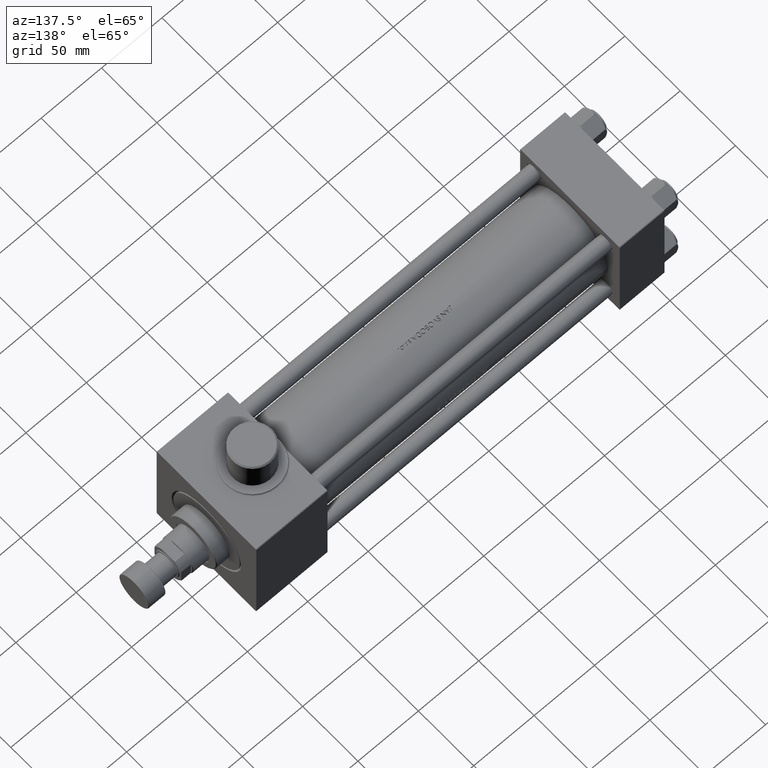
[diagram: clean part render]
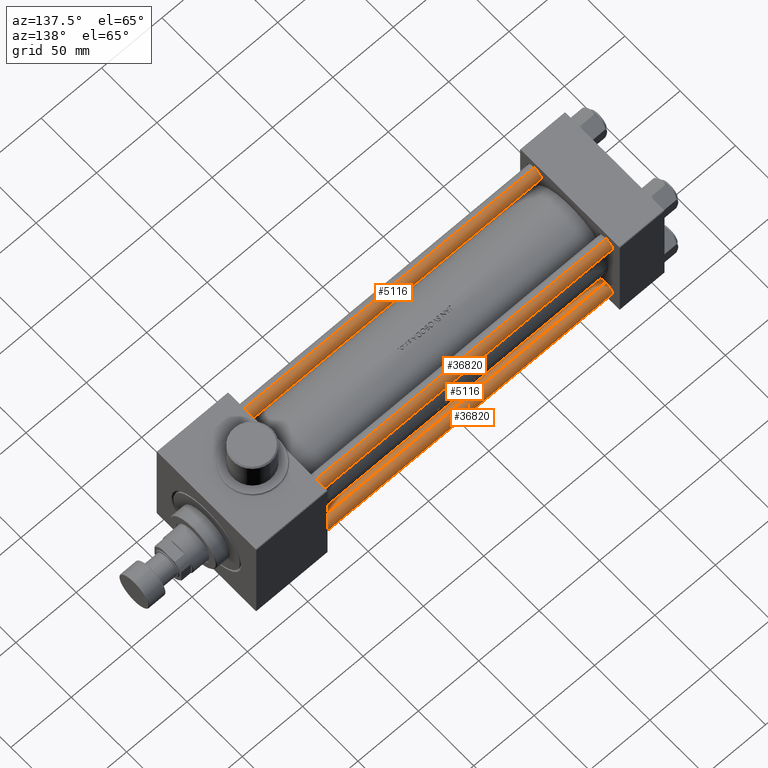
[diagram: same view with one multi-face feature highlighted, each face labeled with its STEP entity id]
A machine part, auxiliary view. The highlighted faces form ONE feature: a constant-radius fillet chain: 4 tangent blend faces with common blend radius 6 mm. The faces share edges in the B-rep.
Their STEP definitions:
[1] entity #36820 (Cylinder):
#262 = DIRECTION ( 'NONE',  ( -0.000000000000000000, -0.000000000000000000, -1.000000000000000000 ) ) ;
#1066 = AXIS2_PLACEMENT_3D ( 'NONE', #26756, #5102, #37697 ) ;
#2256 = VERTEX_POINT ( 'NONE', #4700 ) ;
#3238 = CARTESIAN_POINT ( 'NONE',  ( 6.000000000000000888, 7.347880794884120722E-16, 308.0000000000000000 ) ) ;
#3249 = EDGE_CURVE ( 'NONE', #2256, #30453, #42095, .T. ) ;
#3630 = DIRECTION ( 'NONE',  ( -1.000000000000000000, 0.000000000000000000, 0.000000000000000000 ) ) ;
#3773 = VECTOR ( 'NONE', #262, 1000.000000000000000 ) ;
#4700 = CARTESIAN_POINT ( 'NONE',  ( 6.000000000000000888, 7.347880794884120722E-16, 0.5000000000000559552 ) ) ;
#5102 = DIRECTION ( 'NONE',  ( -0.000000000000000000, -0.000000000000000000, 1.000000000000000000 ) ) ;
#7195 = FACE_OUTER_BOUND ( 'NONE', #8719, .T. ) ;
#8719 = EDGE_LOOP ( 'NONE', ( #16866, #36133, #22512, #27454 ) ) ;
#10499 = CARTESIAN_POINT ( 'NONE',  ( -6.000000000000000888, 0.000000000000000000, 307.4999999999999432 ) ) ;
#11201 = CARTESIAN_POINT ( 'NONE',  ( -6.000000000000000888, 0.000000000000000000, 308.0000000000000000 ) ) ;
#15218 = AXIS2_PLACEMENT_3D ( 'NONE', #45286, #41731, #38152 ) ;
#16619 = VERTEX_POINT ( 'NONE', #24378 ) ;
#16866 = ORIENTED_EDGE ( 'NONE', *, *, #23014, .T. ) ;
#17490 = CIRCLE ( 'NONE', #15218, 6.000000000000000888 ) ;
#21714 = CYLINDRICAL_SURFACE ( 'NONE', #40091, 6.000000000000000888 ) ;
#21949 = DIRECTION ( 'NONE',  ( -0.000000000000000000, -0.000000000000000000, -1.000000000000000000 ) ) ;
#22512 = ORIENTED_EDGE ( 'NONE', *, *, #3249, .T. ) ;
#23014 = EDGE_CURVE ( 'NONE', #41984, #16619, #17490, .T. ) ;
#24183 = LINE ( 'NONE', #3238, #40778 ) ;
#24378 = CARTESIAN_POINT ( 'NONE',  ( 6.000000000000000888, 7.347880794884120722E-16, 307.4999999999999432 ) ) ;
#25016 = LINE ( 'NONE', #11201, #3773 ) ;
#26756 = CARTESIAN_POINT ( 'NONE',  ( 0.000000000000000000, 0.000000000000000000, 0.5000000000000559552 ) ) ;
#27454 = ORIENTED_EDGE ( 'NONE', *, *, #45685, .F. ) ;
#30453 = VERTEX_POINT ( 'NONE', #46808 ) ;
#31952 = CARTESIAN_POINT ( 'NONE',  ( 0.000000000000000000, 0.000000000000000000, 308.0000000000000000 ) ) ;
#34185 = EDGE_CURVE ( 'NONE', #16619, #2256, #24183, .T. ) ;
#36133 = ORIENTED_EDGE ( 'NONE', *, *, #34185, .T. ) ;
#36820 = ADVANCED_FACE ( 'NONE', ( #7195 ), #21714, .T. ) ;
#37697 = DIRECTION ( 'NONE',  ( 1.000000000000000000, 0.000000000000000000, 0.000000000000000000 ) ) ;
#38152 = DIRECTION ( 'NONE',  ( 1.000000000000000000, 0.000000000000000000, 0.000000000000000000 ) ) ;
#40091 = AXIS2_PLACEMENT_3D ( 'NONE', #31952, #21949, #3630 ) ;
#40778 = VECTOR ( 'NONE', #46324, 1000.000000000000000 ) ;
#41731 = DIRECTION ( 'NONE',  ( 0.000000000000000000, 0.000000000000000000, -1.000000000000000000 ) ) ;
#41984 = VERTEX_POINT ( 'NONE', #10499 ) ;
#42095 = CIRCLE ( 'NONE', #1066, 6.000000000000000888 ) ;
#45286 = CARTESIAN_POINT ( 'NONE',  ( 0.000000000000000000, 0.000000000000000000, 307.4999999999999432 ) ) ;
#45685 = EDGE_CURVE ( 'NONE', #41984, #30453, #25016, .T. ) ;
#46324 = DIRECTION ( 'NONE',  ( -0.000000000000000000, -0.000000000000000000, -1.000000000000000000 ) ) ;
#46808 = CARTESIAN_POINT ( 'NONE',  ( -6.000000000000000888, 0.000000000000000000, 0.5000000000000559552 ) ) ;
[2] entity #5116 (Cylinder):
#262 = DIRECTION ( 'NONE',  ( -0.000000000000000000, -0.000000000000000000, -1.000000000000000000 ) ) ;
#1927 = DIRECTION ( 'NONE',  ( 0.000000000000000000, 0.000000000000000000, -1.000000000000000000 ) ) ;
#2256 = VERTEX_POINT ( 'NONE', #4700 ) ;
#3238 = CARTESIAN_POINT ( 'NONE',  ( 6.000000000000000888, 7.347880794884120722E-16, 308.0000000000000000 ) ) ;
#3773 = VECTOR ( 'NONE', #262, 1000.000000000000000 ) ;
#4700 = CARTESIAN_POINT ( 'NONE',  ( 6.000000000000000888, 7.347880794884120722E-16, 0.5000000000000559552 ) ) ;
#5116 = ADVANCED_FACE ( 'NONE', ( #41141 ), #8516, .T. ) ;
#8416 = CIRCLE ( 'NONE', #16774, 6.000000000000000888 ) ;
#8516 = CYLINDRICAL_SURFACE ( 'NONE', #45189, 6.000000000000000888 ) ;
#10293 = ORIENTED_EDGE ( 'NONE', *, *, #34185, .F. ) ;
#10499 = CARTESIAN_POINT ( 'NONE',  ( -6.000000000000000888, 0.000000000000000000, 307.4999999999999432 ) ) ;
#10890 = ORIENTED_EDGE ( 'NONE', *, *, #31586, .T. ) ;
#11201 = CARTESIAN_POINT ( 'NONE',  ( -6.000000000000000888, 0.000000000000000000, 308.0000000000000000 ) ) ;
#11822 = AXIS2_PLACEMENT_3D ( 'NONE', #29656, #30364, #33455 ) ;
#12158 = DIRECTION ( 'NONE',  ( 1.000000000000000000, 0.000000000000000000, 0.000000000000000000 ) ) ;
#16619 = VERTEX_POINT ( 'NONE', #24378 ) ;
#16774 = AXIS2_PLACEMENT_3D ( 'NONE', #34513, #1927, #12158 ) ;
#23037 = DIRECTION ( 'NONE',  ( -0.000000000000000000, -0.000000000000000000, -1.000000000000000000 ) ) ;
#23282 = EDGE_CURVE ( 'NONE', #16619, #41984, #8416, .T. ) ;
#24183 = LINE ( 'NONE', #3238, #40778 ) ;
#24378 = CARTESIAN_POINT ( 'NONE',  ( 6.000000000000000888, 7.347880794884120722E-16, 307.4999999999999432 ) ) ;
#25016 = LINE ( 'NONE', #11201, #3773 ) ;
#27066 = DIRECTION ( 'NONE',  ( -1.000000000000000000, 0.000000000000000000, 0.000000000000000000 ) ) ;
#29656 = CARTESIAN_POINT ( 'NONE',  ( 0.000000000000000000, 0.000000000000000000, 0.5000000000000559552 ) ) ;
#30364 = DIRECTION ( 'NONE',  ( -0.000000000000000000, -0.000000000000000000, 1.000000000000000000 ) ) ;
#30412 = CARTESIAN_POINT ( 'NONE',  ( 0.000000000000000000, 0.000000000000000000, 308.0000000000000000 ) ) ;
#30443 = EDGE_LOOP ( 'NONE', ( #10293, #38912, #44490, #10890 ) ) ;
#30453 = VERTEX_POINT ( 'NONE', #46808 ) ;
#31586 = EDGE_CURVE ( 'NONE', #30453, #2256, #39966, .T. ) ;
#33455 = DIRECTION ( 'NONE',  ( 1.000000000000000000, 0.000000000000000000, 0.000000000000000000 ) ) ;
#34185 = EDGE_CURVE ( 'NONE', #16619, #2256, #24183, .T. ) ;
#34513 = CARTESIAN_POINT ( 'NONE',  ( 0.000000000000000000, 0.000000000000000000, 307.4999999999999432 ) ) ;
#38912 = ORIENTED_EDGE ( 'NONE', *, *, #23282, .T. ) ;
#39966 = CIRCLE ( 'NONE', #11822, 6.000000000000000888 ) ;
#40778 = VECTOR ( 'NONE', #46324, 1000.000000000000000 ) ;
#41141 = FACE_OUTER_BOUND ( 'NONE', #30443, .T. ) ;
#41984 = VERTEX_POINT ( 'NONE', #10499 ) ;
#44490 = ORIENTED_EDGE ( 'NONE', *, *, #45685, .T. ) ;
#45189 = AXIS2_PLACEMENT_3D ( 'NONE', #30412, #23037, #27066 ) ;
#45685 = EDGE_CURVE ( 'NONE', #41984, #30453, #25016, .T. ) ;
#46324 = DIRECTION ( 'NONE',  ( -0.000000000000000000, -0.000000000000000000, -1.000000000000000000 ) ) ;
#46808 = CARTESIAN_POINT ( 'NONE',  ( -6.000000000000000888, 0.000000000000000000, 0.5000000000000559552 ) ) ;
[3] entity #36820 (Cylinder):
#262 = DIRECTION ( 'NONE',  ( -0.000000000000000000, -0.000000000000000000, -1.000000000000000000 ) ) ;
#1066 = AXIS2_PLACEMENT_3D ( 'NONE', #26756, #5102, #37697 ) ;
#2256 = VERTEX_POINT ( 'NONE', #4700 ) ;
#3238 = CARTESIAN_POINT ( 'NONE',  ( 6.000000000000000888, 7.347880794884120722E-16, 308.0000000000000000 ) ) ;
#3249 = EDGE_CURVE ( 'NONE', #2256, #30453, #42095, .T. ) ;
#3630 = DIRECTION ( 'NONE',  ( -1.000000000000000000, 0.000000000000000000, 0.000000000000000000 ) ) ;
#3773 = VECTOR ( 'NONE', #262, 1000.000000000000000 ) ;
#4700 = CARTESIAN_POINT ( 'NONE',  ( 6.000000000000000888, 7.347880794884120722E-16, 0.5000000000000559552 ) ) ;
#5102 = DIRECTION ( 'NONE',  ( -0.000000000000000000, -0.000000000000000000, 1.000000000000000000 ) ) ;
#7195 = FACE_OUTER_BOUND ( 'NONE', #8719, .T. ) ;
#8719 = EDGE_LOOP ( 'NONE', ( #16866, #36133, #22512, #27454 ) ) ;
#10499 = CARTESIAN_POINT ( 'NONE',  ( -6.000000000000000888, 0.000000000000000000, 307.4999999999999432 ) ) ;
#11201 = CARTESIAN_POINT ( 'NONE',  ( -6.000000000000000888, 0.000000000000000000, 308.0000000000000000 ) ) ;
#15218 = AXIS2_PLACEMENT_3D ( 'NONE', #45286, #41731, #38152 ) ;
#16619 = VERTEX_POINT ( 'NONE', #24378 ) ;
#16866 = ORIENTED_EDGE ( 'NONE', *, *, #23014, .T. ) ;
#17490 = CIRCLE ( 'NONE', #15218, 6.000000000000000888 ) ;
#21714 = CYLINDRICAL_SURFACE ( 'NONE', #40091, 6.000000000000000888 ) ;
#21949 = DIRECTION ( 'NONE',  ( -0.000000000000000000, -0.000000000000000000, -1.000000000000000000 ) ) ;
#22512 = ORIENTED_EDGE ( 'NONE', *, *, #3249, .T. ) ;
#23014 = EDGE_CURVE ( 'NONE', #41984, #16619, #17490, .T. ) ;
#24183 = LINE ( 'NONE', #3238, #40778 ) ;
#24378 = CARTESIAN_POINT ( 'NONE',  ( 6.000000000000000888, 7.347880794884120722E-16, 307.4999999999999432 ) ) ;
#25016 = LINE ( 'NONE', #11201, #3773 ) ;
#26756 = CARTESIAN_POINT ( 'NONE',  ( 0.000000000000000000, 0.000000000000000000, 0.5000000000000559552 ) ) ;
#27454 = ORIENTED_EDGE ( 'NONE', *, *, #45685, .F. ) ;
#30453 = VERTEX_POINT ( 'NONE', #46808 ) ;
#31952 = CARTESIAN_POINT ( 'NONE',  ( 0.000000000000000000, 0.000000000000000000, 308.0000000000000000 ) ) ;
#34185 = EDGE_CURVE ( 'NONE', #16619, #2256, #24183, .T. ) ;
#36133 = ORIENTED_EDGE ( 'NONE', *, *, #34185, .T. ) ;
#36820 = ADVANCED_FACE ( 'NONE', ( #7195 ), #21714, .T. ) ;
#37697 = DIRECTION ( 'NONE',  ( 1.000000000000000000, 0.000000000000000000, 0.000000000000000000 ) ) ;
#38152 = DIRECTION ( 'NONE',  ( 1.000000000000000000, 0.000000000000000000, 0.000000000000000000 ) ) ;
#40091 = AXIS2_PLACEMENT_3D ( 'NONE', #31952, #21949, #3630 ) ;
#40778 = VECTOR ( 'NONE', #46324, 1000.000000000000000 ) ;
#41731 = DIRECTION ( 'NONE',  ( 0.000000000000000000, 0.000000000000000000, -1.000000000000000000 ) ) ;
#41984 = VERTEX_POINT ( 'NONE', #10499 ) ;
#42095 = CIRCLE ( 'NONE', #1066, 6.000000000000000888 ) ;
#45286 = CARTESIAN_POINT ( 'NONE',  ( 0.000000000000000000, 0.000000000000000000, 307.4999999999999432 ) ) ;
#45685 = EDGE_CURVE ( 'NONE', #41984, #30453, #25016, .T. ) ;
#46324 = DIRECTION ( 'NONE',  ( -0.000000000000000000, -0.000000000000000000, -1.000000000000000000 ) ) ;
#46808 = CARTESIAN_POINT ( 'NONE',  ( -6.000000000000000888, 0.000000000000000000, 0.5000000000000559552 ) ) ;
[4] entity #5116 (Cylinder):
#262 = DIRECTION ( 'NONE',  ( -0.000000000000000000, -0.000000000000000000, -1.000000000000000000 ) ) ;
#1927 = DIRECTION ( 'NONE',  ( 0.000000000000000000, 0.000000000000000000, -1.000000000000000000 ) ) ;
#2256 = VERTEX_POINT ( 'NONE', #4700 ) ;
#3238 = CARTESIAN_POINT ( 'NONE',  ( 6.000000000000000888, 7.347880794884120722E-16, 308.0000000000000000 ) ) ;
#3773 = VECTOR ( 'NONE', #262, 1000.000000000000000 ) ;
#4700 = CARTESIAN_POINT ( 'NONE',  ( 6.000000000000000888, 7.347880794884120722E-16, 0.5000000000000559552 ) ) ;
#5116 = ADVANCED_FACE ( 'NONE', ( #41141 ), #8516, .T. ) ;
#8416 = CIRCLE ( 'NONE', #16774, 6.000000000000000888 ) ;
#8516 = CYLINDRICAL_SURFACE ( 'NONE', #45189, 6.000000000000000888 ) ;
#10293 = ORIENTED_EDGE ( 'NONE', *, *, #34185, .F. ) ;
#10499 = CARTESIAN_POINT ( 'NONE',  ( -6.000000000000000888, 0.000000000000000000, 307.4999999999999432 ) ) ;
#10890 = ORIENTED_EDGE ( 'NONE', *, *, #31586, .T. ) ;
#11201 = CARTESIAN_POINT ( 'NONE',  ( -6.000000000000000888, 0.000000000000000000, 308.0000000000000000 ) ) ;
#11822 = AXIS2_PLACEMENT_3D ( 'NONE', #29656, #30364, #33455 ) ;
#12158 = DIRECTION ( 'NONE',  ( 1.000000000000000000, 0.000000000000000000, 0.000000000000000000 ) ) ;
#16619 = VERTEX_POINT ( 'NONE', #24378 ) ;
#16774 = AXIS2_PLACEMENT_3D ( 'NONE', #34513, #1927, #12158 ) ;
#23037 = DIRECTION ( 'NONE',  ( -0.000000000000000000, -0.000000000000000000, -1.000000000000000000 ) ) ;
#23282 = EDGE_CURVE ( 'NONE', #16619, #41984, #8416, .T. ) ;
#24183 = LINE ( 'NONE', #3238, #40778 ) ;
#24378 = CARTESIAN_POINT ( 'NONE',  ( 6.000000000000000888, 7.347880794884120722E-16, 307.4999999999999432 ) ) ;
#25016 = LINE ( 'NONE', #11201, #3773 ) ;
#27066 = DIRECTION ( 'NONE',  ( -1.000000000000000000, 0.000000000000000000, 0.000000000000000000 ) ) ;
#29656 = CARTESIAN_POINT ( 'NONE',  ( 0.000000000000000000, 0.000000000000000000, 0.5000000000000559552 ) ) ;
#30364 = DIRECTION ( 'NONE',  ( -0.000000000000000000, -0.000000000000000000, 1.000000000000000000 ) ) ;
#30412 = CARTESIAN_POINT ( 'NONE',  ( 0.000000000000000000, 0.000000000000000000, 308.0000000000000000 ) ) ;
#30443 = EDGE_LOOP ( 'NONE', ( #10293, #38912, #44490, #10890 ) ) ;
#30453 = VERTEX_POINT ( 'NONE', #46808 ) ;
#31586 = EDGE_CURVE ( 'NONE', #30453, #2256, #39966, .T. ) ;
#33455 = DIRECTION ( 'NONE',  ( 1.000000000000000000, 0.000000000000000000, 0.000000000000000000 ) ) ;
#34185 = EDGE_CURVE ( 'NONE', #16619, #2256, #24183, .T. ) ;
#34513 = CARTESIAN_POINT ( 'NONE',  ( 0.000000000000000000, 0.000000000000000000, 307.4999999999999432 ) ) ;
#38912 = ORIENTED_EDGE ( 'NONE', *, *, #23282, .T. ) ;
#39966 = CIRCLE ( 'NONE', #11822, 6.000000000000000888 ) ;
#40778 = VECTOR ( 'NONE', #46324, 1000.000000000000000 ) ;
#41141 = FACE_OUTER_BOUND ( 'NONE', #30443, .T. ) ;
#41984 = VERTEX_POINT ( 'NONE', #10499 ) ;
#44490 = ORIENTED_EDGE ( 'NONE', *, *, #45685, .T. ) ;
#45189 = AXIS2_PLACEMENT_3D ( 'NONE', #30412, #23037, #27066 ) ;
#45685 = EDGE_CURVE ( 'NONE', #41984, #30453, #25016, .T. ) ;
#46324 = DIRECTION ( 'NONE',  ( -0.000000000000000000, -0.000000000000000000, -1.000000000000000000 ) ) ;
#46808 = CARTESIAN_POINT ( 'NONE',  ( -6.000000000000000888, 0.000000000000000000, 0.5000000000000559552 ) ) ;